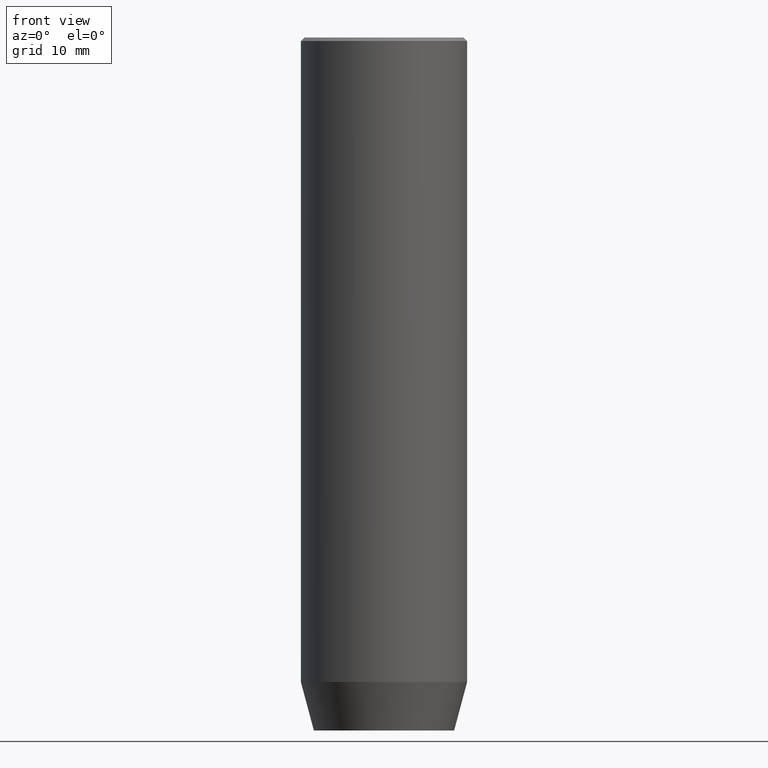
[diagram: clean part render]
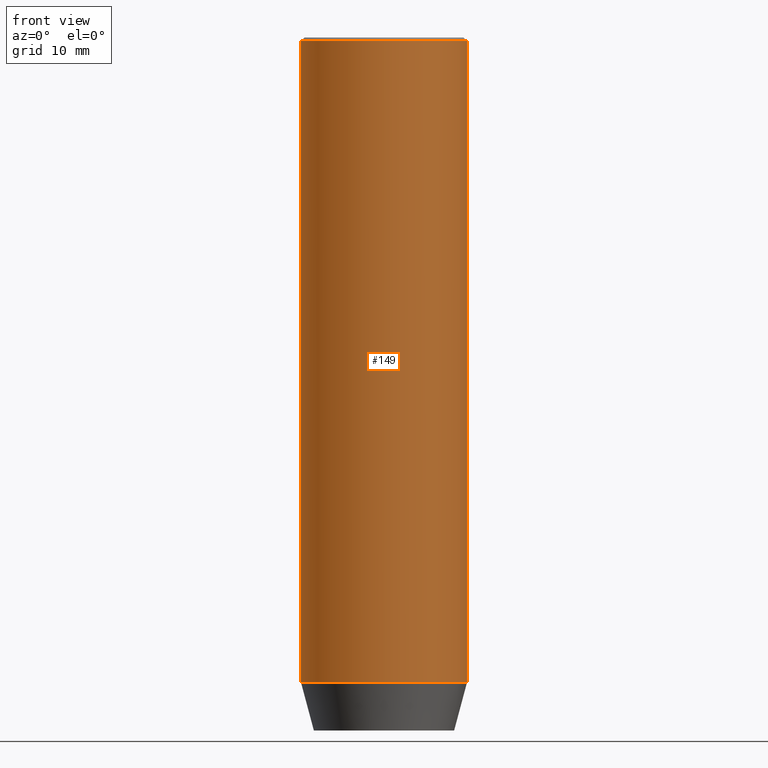
[diagram: same view with one face highlighted and labeled with its STEP entity id]
A machine part, front view. The second image highlights one B-rep face of the part: STEP entity #149.
In plain terms, the highlighted cylindrical surface (partial cylindrical patch) has radius 12 mm, axis along (-0, -0, 1).
Its self-contained STEP definition (entity closure, byte-faithful):
#8 = EDGE_CURVE ( 'NONE', #352, #516, #214, .T. ) ;
#20 = VECTOR ( 'NONE', #494, 1000.000000000000000 ) ;
#21 = AXIS2_PLACEMENT_3D ( 'NONE', #459, #546, #550 ) ;
#25 = DIRECTION ( 'NONE',  ( 1.000000000000000000, 0.000000000000000000, 0.000000000000000000 ) ) ;
#39 = EDGE_CURVE ( 'NONE', #414, #516, #404, .T. ) ;
#40 = AXIS2_PLACEMENT_3D ( 'NONE', #78, #262, #25 ) ;
#78 = CARTESIAN_POINT ( 'NONE',  ( 0.000000000000000000, 0.000000000000000000, 0.000000000000000000 ) ) ;
#117 = CARTESIAN_POINT ( 'NONE',  ( 0.000000000000000000, 0.000000000000000000, -0.5000000000000196509 ) ) ;
#149 = ADVANCED_FACE ( 'NONE', ( #487 ), #253, .T. ) ;
#167 = CIRCLE ( 'NONE', #21, 12.00000000000000000 ) ;
#197 = AXIS2_PLACEMENT_3D ( 'NONE', #117, #363, #447 ) ;
#214 = LINE ( 'NONE', #399, #20 ) ;
#218 = CARTESIAN_POINT ( 'NONE',  ( -12.00000000000000000, 1.469576158976823947E-15, -0.5000000000000196509 ) ) ;
#253 = CYLINDRICAL_SURFACE ( 'NONE', #40, 12.00000000000000000 ) ;
#262 = DIRECTION ( 'NONE',  ( -0.000000000000000000, -0.000000000000000000, 1.000000000000000000 ) ) ;
#284 = EDGE_CURVE ( 'NONE', #352, #514, #167, .T. ) ;
#310 = DIRECTION ( 'NONE',  ( -0.000000000000000000, -0.000000000000000000, 1.000000000000000000 ) ) ;
#334 = ORIENTED_EDGE ( 'NONE', *, *, #515, .T. ) ;
#339 = ORIENTED_EDGE ( 'NONE', *, *, #39, .T. ) ;
#352 = VERTEX_POINT ( 'NONE', #526 ) ;
#357 = CARTESIAN_POINT ( 'NONE',  ( 12.00000000000000000, 0.000000000000000000, 0.000000000000000000 ) ) ;
#359 = EDGE_LOOP ( 'NONE', ( #512, #549, #334, #339 ) ) ;
#363 = DIRECTION ( 'NONE',  ( 0.000000000000000000, 0.000000000000000000, -1.000000000000000000 ) ) ;
#399 = CARTESIAN_POINT ( 'NONE',  ( -12.00000000000000000, 1.469576158976823947E-15, 0.000000000000000000 ) ) ;
#404 = CIRCLE ( 'NONE', #197, 12.00000000000000000 ) ;
#414 = VERTEX_POINT ( 'NONE', #472 ) ;
#424 = VECTOR ( 'NONE', #310, 1000.000000000000000 ) ;
#447 = DIRECTION ( 'NONE',  ( 1.000000000000000000, 0.000000000000000000, 0.000000000000000000 ) ) ;
#459 = CARTESIAN_POINT ( 'NONE',  ( 0.000000000000000000, 0.000000000000000000, -93.00000000000000000 ) ) ;
#472 = CARTESIAN_POINT ( 'NONE',  ( 12.00000000000000000, 0.000000000000000000, -0.5000000000000196509 ) ) ;
#487 = FACE_OUTER_BOUND ( 'NONE', #359, .T. ) ;
#494 = DIRECTION ( 'NONE',  ( -0.000000000000000000, -0.000000000000000000, 1.000000000000000000 ) ) ;
#512 = ORIENTED_EDGE ( 'NONE', *, *, #8, .F. ) ;
#514 = VERTEX_POINT ( 'NONE', #582 ) ;
#515 = EDGE_CURVE ( 'NONE', #514, #414, #545, .T. ) ;
#516 = VERTEX_POINT ( 'NONE', #218 ) ;
#526 = CARTESIAN_POINT ( 'NONE',  ( -12.00000000000000000, 1.469576158976823947E-15, -93.00000000000000000 ) ) ;
#545 = LINE ( 'NONE', #357, #424 ) ;
#546 = DIRECTION ( 'NONE',  ( -0.000000000000000000, -0.000000000000000000, 1.000000000000000000 ) ) ;
#549 = ORIENTED_EDGE ( 'NONE', *, *, #284, .T. ) ;
#550 = DIRECTION ( 'NONE',  ( 1.000000000000000000, 0.000000000000000000, 0.000000000000000000 ) ) ;
#582 = CARTESIAN_POINT ( 'NONE',  ( 12.00000000000000000, 0.000000000000000000, -93.00000000000000000 ) ) ;